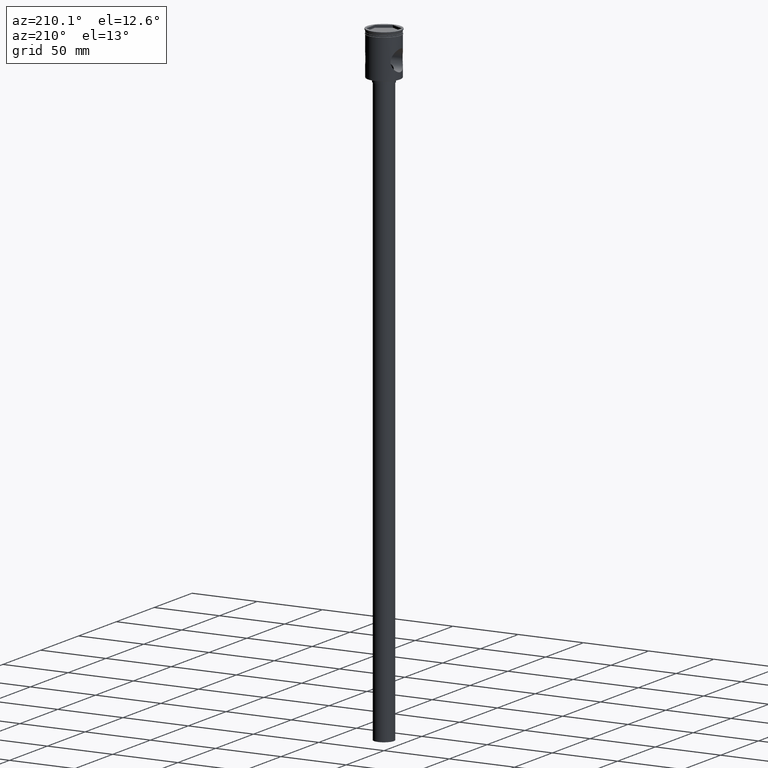
[diagram: clean part render]
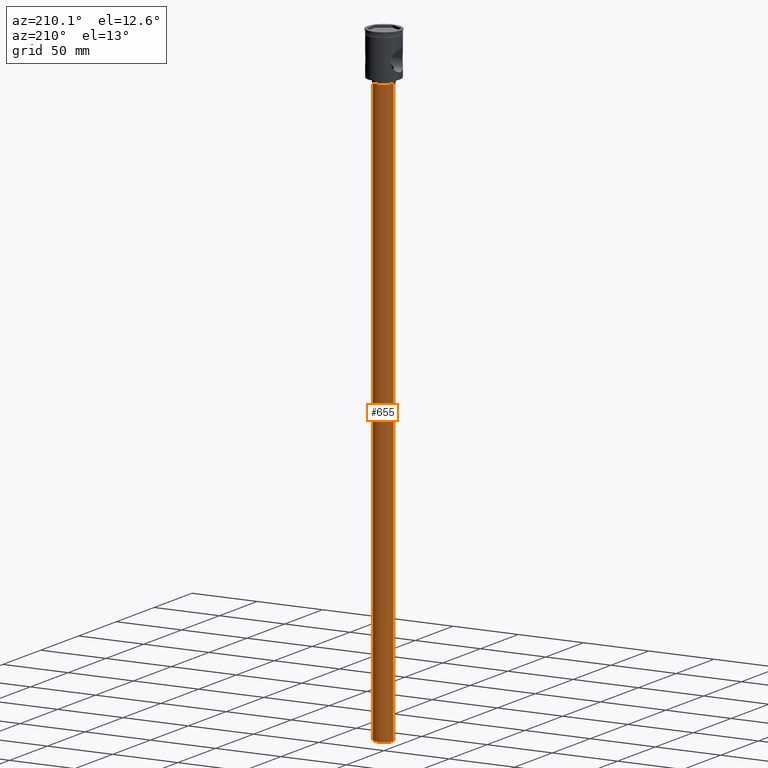
[diagram: same view with one face highlighted and labeled with its STEP entity id]
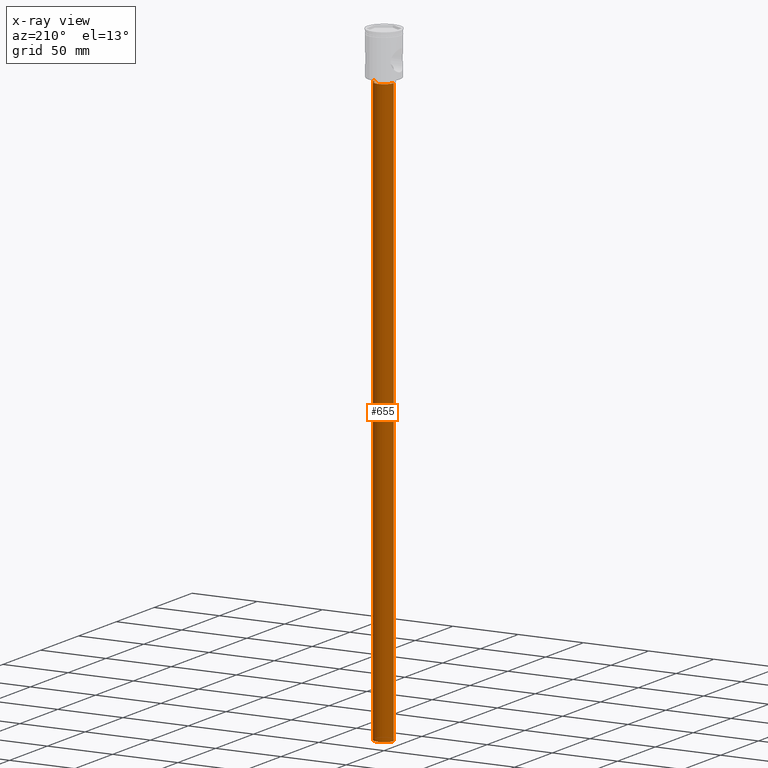
[diagram: x-ray of the same camera — body ghosted, the highlighted face saturated]
A machine part, auxiliary view. The second image highlights one B-rep face of the part: STEP entity #655.
The next image is the same camera in x-ray: the body ghosted, the highlighted face saturated — about 0% of this face is hidden behind the body in this view.
In plain terms, the highlighted cylindrical surface (edge-blend (fillet) strip) has radius 7.5 mm, axis along (-0, -0, 1).
Its self-contained STEP definition (entity closure, byte-faithful):
#24 = EDGE_CURVE ( 'NONE', #586, #1321, #709, .T. ) ;
#104 = CARTESIAN_POINT ( 'NONE',  ( 0.000000000000000000, 0.000000000000000000, -36.50000000000000711 ) ) ;
#117 = AXIS2_PLACEMENT_3D ( 'NONE', #1020, #645, #1258 ) ;
#219 = CARTESIAN_POINT ( 'NONE',  ( 7.500000000000000000, 0.000000000000000000, -483.5000000000000568 ) ) ;
#269 = DIRECTION ( 'NONE',  ( -0.000000000000000000, -0.000000000000000000, 1.000000000000000000 ) ) ;
#316 = ORIENTED_EDGE ( 'NONE', *, *, #539, .T. ) ;
#342 = ORIENTED_EDGE ( 'NONE', *, *, #1301, .F. ) ;
#369 = CYLINDRICAL_SURFACE ( 'NONE', #1384, 7.500000000000000000 ) ;
#405 = VERTEX_POINT ( 'NONE', #886 ) ;
#431 = DIRECTION ( 'NONE',  ( -0.000000000000000000, -0.000000000000000000, 1.000000000000000000 ) ) ;
#464 = CIRCLE ( 'NONE', #117, 7.500000000000000000 ) ;
#493 = CARTESIAN_POINT ( 'NONE',  ( -7.500000000000000000, 9.184850993605147944E-16, -483.5000000000000568 ) ) ;
#539 = EDGE_CURVE ( 'NONE', #1321, #405, #1481, .T. ) ;
#568 = LINE ( 'NONE', #219, #674 ) ;
#586 = VERTEX_POINT ( 'NONE', #841 ) ;
#644 = EDGE_LOOP ( 'NONE', ( #342, #1345, #316, #972 ) ) ;
#645 = DIRECTION ( 'NONE',  ( 0.000000000000000000, 0.000000000000000000, -1.000000000000000000 ) ) ;
#652 = CARTESIAN_POINT ( 'NONE',  ( -7.500000000000000000, 9.184850993605147944E-16, -36.50000000000000711 ) ) ;
#655 = ADVANCED_FACE ( 'NONE', ( #1552 ), #369, .T. ) ;
#674 = VECTOR ( 'NONE', #431, 1000.000000000000000 ) ;
#709 = LINE ( 'NONE', #493, #1542 ) ;
#728 = DIRECTION ( 'NONE',  ( 1.000000000000000000, 0.000000000000000000, 0.000000000000000000 ) ) ;
#802 = EDGE_CURVE ( 'NONE', #1260, #405, #568, .T. ) ;
#833 = CARTESIAN_POINT ( 'NONE',  ( 0.000000000000000000, 0.000000000000000000, -483.5000000000000568 ) ) ;
#841 = CARTESIAN_POINT ( 'NONE',  ( -7.500000000000000000, 9.184850993605147944E-16, -483.5000000000000568 ) ) ;
#886 = CARTESIAN_POINT ( 'NONE',  ( 7.500000000000000000, 0.000000000000000000, -36.50000000000000711 ) ) ;
#972 = ORIENTED_EDGE ( 'NONE', *, *, #802, .F. ) ;
#1020 = CARTESIAN_POINT ( 'NONE',  ( 0.000000000000000000, 0.000000000000000000, -483.5000000000000568 ) ) ;
#1134 = AXIS2_PLACEMENT_3D ( 'NONE', #104, #1516, #1532 ) ;
#1203 = DIRECTION ( 'NONE',  ( -0.000000000000000000, -0.000000000000000000, 1.000000000000000000 ) ) ;
#1258 = DIRECTION ( 'NONE',  ( -1.000000000000000000, 0.000000000000000000, 0.000000000000000000 ) ) ;
#1260 = VERTEX_POINT ( 'NONE', #1362 ) ;
#1301 = EDGE_CURVE ( 'NONE', #586, #1260, #464, .T. ) ;
#1321 = VERTEX_POINT ( 'NONE', #652 ) ;
#1345 = ORIENTED_EDGE ( 'NONE', *, *, #24, .T. ) ;
#1362 = CARTESIAN_POINT ( 'NONE',  ( 7.500000000000000000, 0.000000000000000000, -483.5000000000000568 ) ) ;
#1384 = AXIS2_PLACEMENT_3D ( 'NONE', #833, #269, #728 ) ;
#1481 = CIRCLE ( 'NONE', #1134, 7.500000000000000000 ) ;
#1516 = DIRECTION ( 'NONE',  ( 0.000000000000000000, 0.000000000000000000, -1.000000000000000000 ) ) ;
#1532 = DIRECTION ( 'NONE',  ( -1.000000000000000000, 0.000000000000000000, 0.000000000000000000 ) ) ;
#1542 = VECTOR ( 'NONE', #1203, 1000.000000000000000 ) ;
#1552 = FACE_OUTER_BOUND ( 'NONE', #644, .T. ) ;